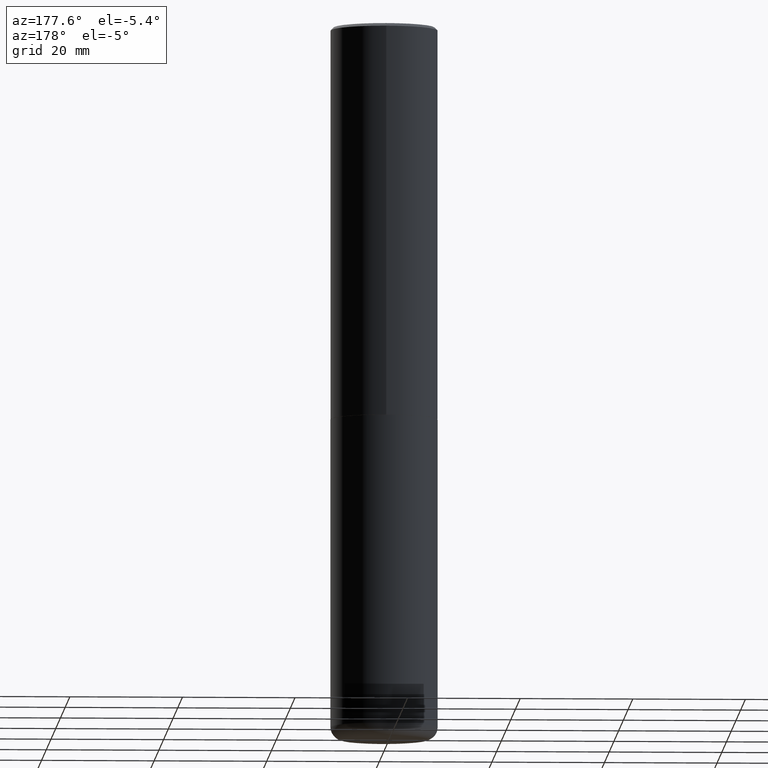
[diagram: clean part render]
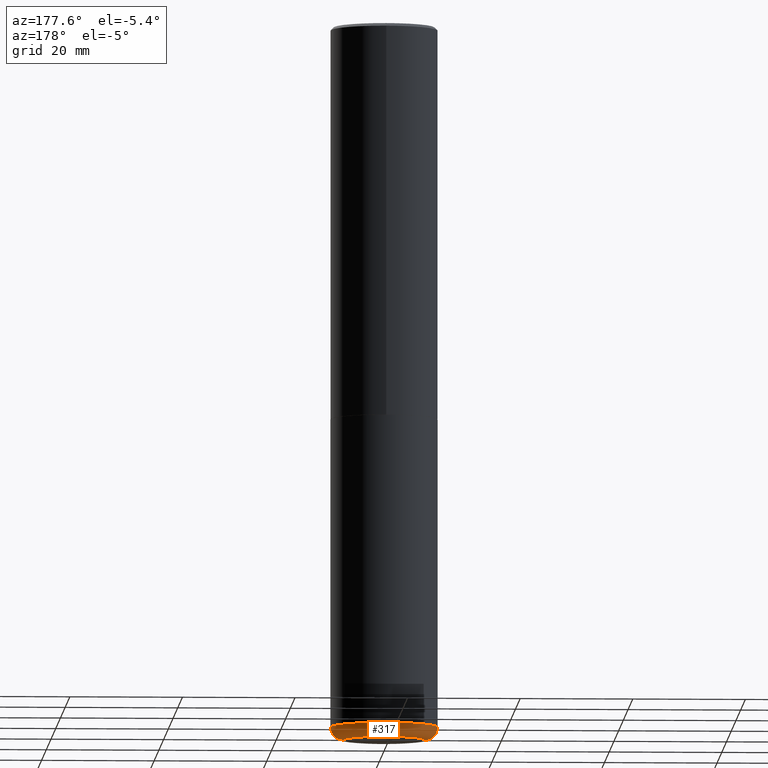
[diagram: same view with one face highlighted and labeled with its STEP entity id]
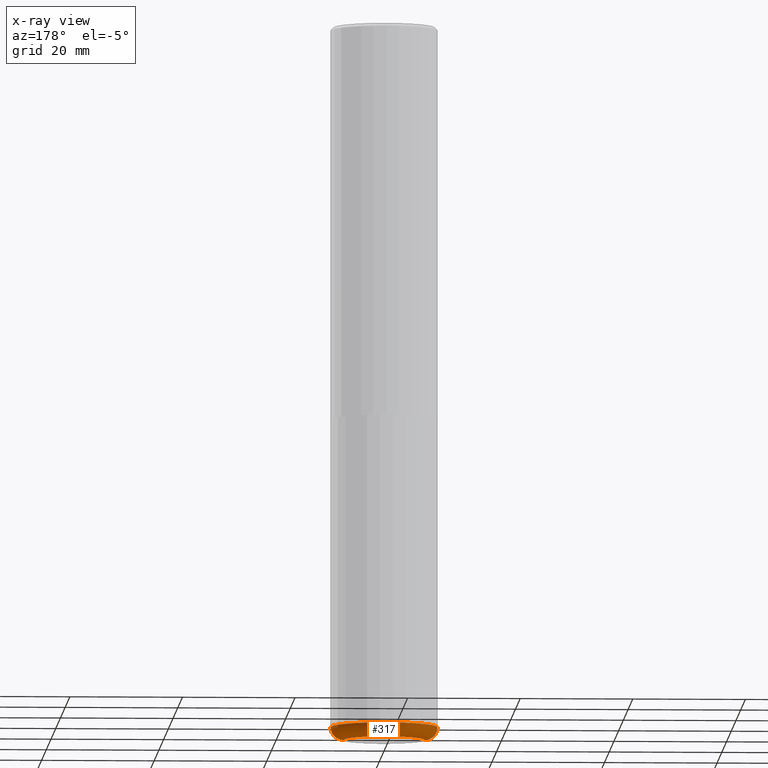
[diagram: x-ray of the same camera — body ghosted, the highlighted face saturated]
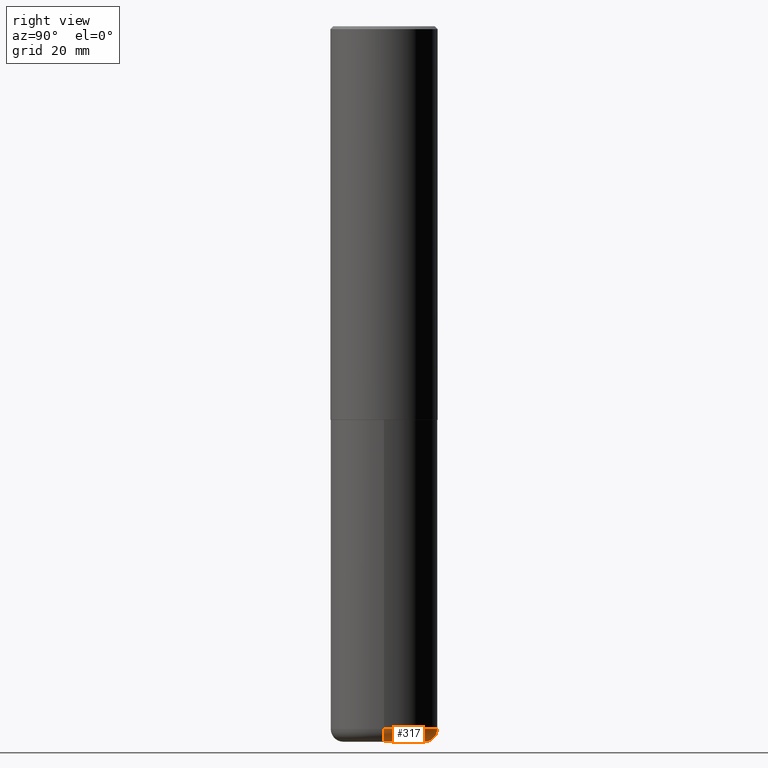
[diagram: same view with one face highlighted and labeled with its STEP entity id]
A machine part, auxiliary view. The second image highlights one B-rep face of the part: STEP entity #317.
The next image is the same camera in x-ray: the body ghosted, the highlighted face saturated — about 0% of this face is hidden behind the body in this view.
A second angle (right view) of the same face is appended — the face is thin or edge-on in the first view.
In plain terms, the highlighted toroidal blend (fillet) surface has major radius 7.239 mm and minor (blend) radius 2.286 mm.
Its self-contained STEP definition (entity closure, byte-faithful):
#7 = EDGE_CURVE ( 'NONE', #184, #363, #131, .T. ) ;
#10 = AXIS2_PLACEMENT_3D ( 'NONE', #96, #383, #347 ) ;
#40 = AXIS2_PLACEMENT_3D ( 'NONE', #311, #415, #388 ) ;
#51 = VERTEX_POINT ( 'NONE', #199 ) ;
#96 = CARTESIAN_POINT ( 'NONE',  ( 0.2850000000000000311, -1.913331773686043011E-14, -4.910000000000000142 ) ) ;
#99 = AXIS2_PLACEMENT_3D ( 'NONE', #239, #173, #111 ) ;
#111 = DIRECTION ( 'NONE',  ( 1.000000000000000000, -6.982962677686269077E-15, 4.883557194083113462E-29 ) ) ;
#126 = CIRCLE ( 'NONE', #40, 0.3749999999999999445 ) ;
#131 = CIRCLE ( 'NONE', #321, 0.2850000000000000311 ) ;
#134 = ORIENTED_EDGE ( 'NONE', *, *, #189, .F. ) ;
#156 = DIRECTION ( 'NONE',  ( 7.105427357601001859E-15, 1.000000000000000000, -3.491481338843145583E-15 ) ) ;
#173 = DIRECTION ( 'NONE',  ( -2.445468806185136597E-29, 3.491481338843145583E-15, 1.000000000000000000 ) ) ;
#178 = CARTESIAN_POINT ( 'NONE',  ( 1.222734403092568523E-28, -1.745740669421572989E-14, -5.000000000000000000 ) ) ;
#184 = VERTEX_POINT ( 'NONE', #277 ) ;
#189 = EDGE_CURVE ( 'NONE', #362, #51, #126, .T. ) ;
#199 = CARTESIAN_POINT ( 'NONE',  ( -0.3749999999999999445, -1.447863811461947092E-14, -4.910000000000000142 ) ) ;
#201 = FACE_OUTER_BOUND ( 'NONE', #334, .T. ) ;
#205 = CARTESIAN_POINT ( 'NONE',  ( 0.3749999999999999445, -1.976178437785219664E-14, -4.910000000000000142 ) ) ;
#209 = DIRECTION ( 'NONE',  ( -1.000000000000000000, 7.105427357600996337E-15, 0.000000000000000000 ) ) ;
#218 = CARTESIAN_POINT ( 'NONE',  ( -0.2850000000000000311, -1.495549900595945556E-14, -5.000000000000000000 ) ) ;
#221 = CIRCLE ( 'NONE', #308, 0.08999999999999992728 ) ;
#233 = ORIENTED_EDGE ( 'NONE', *, *, #7, .T. ) ;
#239 = CARTESIAN_POINT ( 'NONE',  ( 1.200725183836902132E-28, -1.714317337371984662E-14, -4.910000000000000142 ) ) ;
#243 = CIRCLE ( 'NONE', #10, 0.08999999999999992728 ) ;
#252 = CARTESIAN_POINT ( 'NONE',  ( -0.2850000000000000311, -1.511812657680356008E-14, -4.910000000000000142 ) ) ;
#263 = DIRECTION ( 'NONE',  ( 1.000000000000000000, -6.982962677686266711E-15, 0.000000000000000000 ) ) ;
#273 = TOROIDAL_SURFACE ( 'NONE', #99, 0.2850000000000000311, 0.08999999999999989952 ) ;
#277 = CARTESIAN_POINT ( 'NONE',  ( 0.2850000000000000311, -1.944755105735631653E-14, -5.000000000000000000 ) ) ;
#308 = AXIS2_PLACEMENT_3D ( 'NONE', #252, #156, #209 ) ;
#311 = CARTESIAN_POINT ( 'NONE',  ( 1.200725183836902132E-28, -1.714317337371984662E-14, -4.910000000000000142 ) ) ;
#317 = ADVANCED_FACE ( 'NONE', ( #201 ), #273, .T. ) ;
#321 = AXIS2_PLACEMENT_3D ( 'NONE', #178, #399, #263 ) ;
#330 = ORIENTED_EDGE ( 'NONE', *, *, #382, .F. ) ;
#334 = EDGE_LOOP ( 'NONE', ( #233, #380, #134, #330 ) ) ;
#347 = DIRECTION ( 'NONE',  ( 1.000000000000000000, -6.982962677686273810E-15, 0.000000000000000000 ) ) ;
#362 = VERTEX_POINT ( 'NONE', #205 ) ;
#363 = VERTEX_POINT ( 'NONE', #218 ) ;
#380 = ORIENTED_EDGE ( 'NONE', *, *, #394, .T. ) ;
#382 = EDGE_CURVE ( 'NONE', #184, #362, #243, .T. ) ;
#383 = DIRECTION ( 'NONE',  ( -6.982962677686266711E-15, -1.000000000000000000, 3.491481338843145583E-15 ) ) ;
#388 = DIRECTION ( 'NONE',  ( 1.000000000000000000, -6.982962677686269077E-15, 0.000000000000000000 ) ) ;
#394 = EDGE_CURVE ( 'NONE', #363, #51, #221, .T. ) ;
#399 = DIRECTION ( 'NONE',  ( -2.445468806185136597E-29, 3.491481338843145583E-15, 1.000000000000000000 ) ) ;
#415 = DIRECTION ( 'NONE',  ( -2.445468806185136597E-29, 3.491481338843145583E-15, 1.000000000000000000 ) ) ;